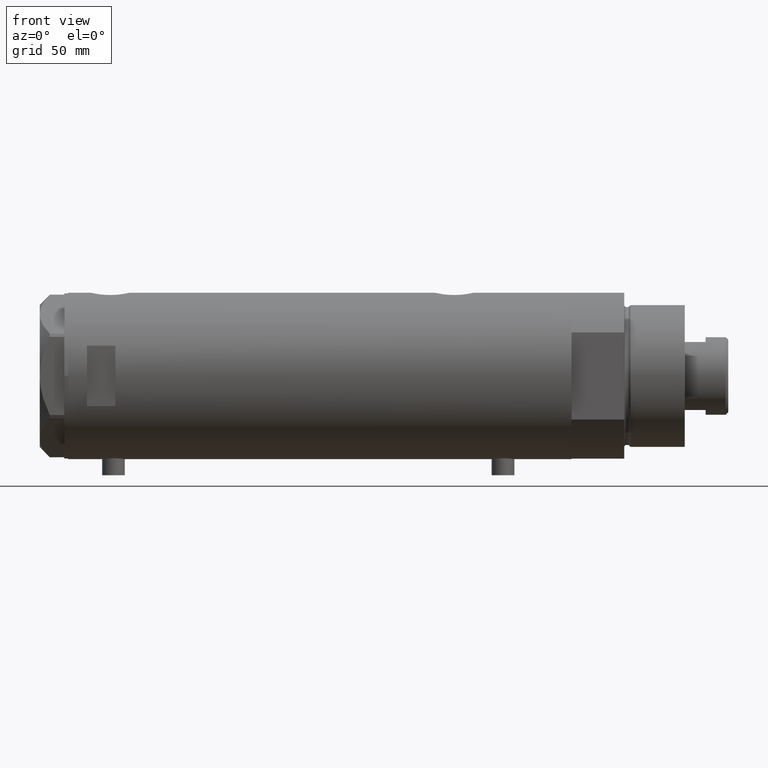
[diagram: clean part render]
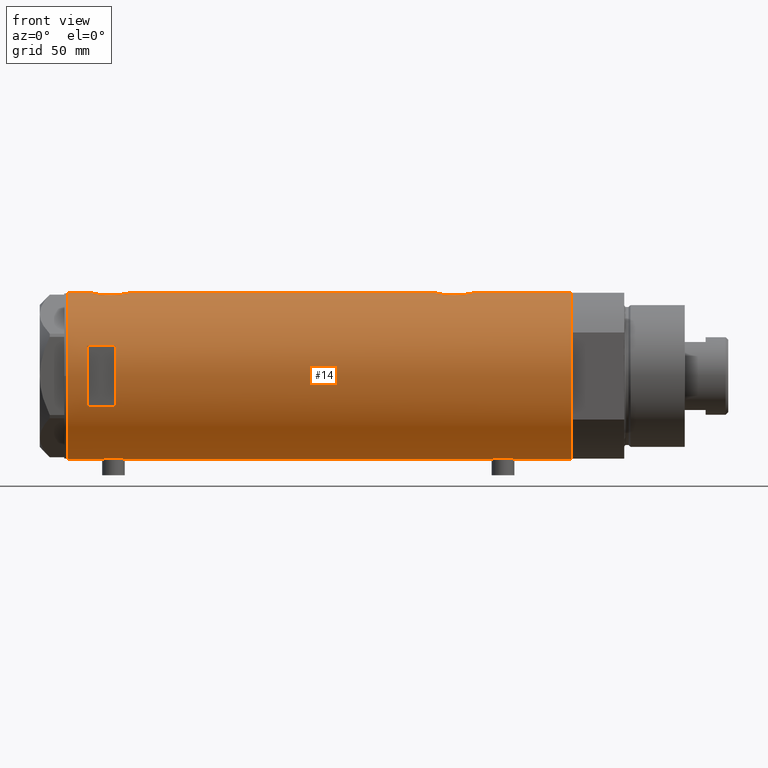
[diagram: same view with one face highlighted and labeled with its STEP entity id]
A machine part, front view. The second image highlights one B-rep face of the part: STEP entity #14.
In plain terms, the highlighted cylindrical surface (partial cylindrical patch) has radius 44 mm, axis along (-1, -0, 0).
Its self-contained STEP definition (entity closure, byte-faithful):
#1 = CARTESIAN_POINT ( 'NONE',  ( -43.91347832647110039, -2.763895659397271665, -102.5093864937758354 ) ) ;
#4 = CIRCLE ( 'NONE', #2629, 44.00000000000000000 ) ;
#14 = ADVANCED_FACE ( 'NONE', ( #3766, #4162 ), #1720, .T. ) ;
#32 = DIRECTION ( 'NONE',  ( -0.000000000000000000, -0.000000000000000000, -1.000000000000000000 ) ) ;
#52 = VERTEX_POINT ( 'NONE', #4429 ) ;
#82 = CARTESIAN_POINT ( 'NONE',  ( 43.13689707656755701, -8.680169016269172033, 105.8916309788879886 ) ) ;
#94 = CARTESIAN_POINT ( 'NONE',  ( 42.84850870634927134, -10.00026508230968325, -71.75583915121741541 ) ) ;
#100 = CARTESIAN_POINT ( 'NONE',  ( 43.61181667275830165, -5.838254419127787642, 102.7745589058250459 ) ) ;
#123 = CARTESIAN_POINT ( 'NONE',  ( 42.85249883256044967, -9.983208936152871971, 111.5657221654182081 ) ) ;
#126 = CARTESIAN_POINT ( 'NONE',  ( -43.66469451360045895, -5.426465874727613325, 112.3277459186421083 ) ) ;
#145 = CARTESIAN_POINT ( 'NONE',  ( 42.86369059155248351, -9.935849517229275563, 109.5936258998179937 ) ) ;
#155 = ORIENTED_EDGE ( 'NONE', *, *, #3172, .F. ) ;
#167 = CARTESIAN_POINT ( 'NONE',  ( 43.77905627191560001, -4.445085099228551329, 101.9185916568396664 ) ) ;
#179 = CARTESIAN_POINT ( 'NONE',  ( -43.83572624786197025, -3.813948911733268776, 104.2316356977933935 ) ) ;
#191 = CARTESIAN_POINT ( 'NONE',  ( 15.96871942267132027, -40.99999999999999289, 123.1999999999999744 ) ) ;
#206 = CARTESIAN_POINT ( 'NONE',  ( -15.96871942267132027, -40.99999999999999289, 108.1999999999999602 ) ) ;
#222 = CARTESIAN_POINT ( 'NONE',  ( 44.00000000000000000, 0.000000000000000000, -133.1999999999999886 ) ) ;
#224 = CARTESIAN_POINT ( 'NONE',  ( -43.91398925748691084, -2.775454910411443876, 114.8147077568105914 ) ) ;
#229 = ORIENTED_EDGE ( 'NONE', *, *, #4259, .F. ) ;
#233 = VERTEX_POINT ( 'NONE', #191 ) ;
#287 = CARTESIAN_POINT ( 'NONE',  ( -43.55380622335315621, -6.250277076879243943, -96.49110166609808914 ) ) ;
#305 = CARTESIAN_POINT ( 'NONE',  ( 43.94187300917955952, -2.283844398366611905, -80.84126046817048916 ) ) ;
#312 = CARTESIAN_POINT ( 'NONE',  ( -43.64013512596971367, -5.618144550806293047, -94.13115745626834041 ) ) ;
#313 = CARTESIAN_POINT ( 'NONE',  ( -44.00000000000000000, 4.742435893011557518E-16, 115.4500000000000028 ) ) ;
#335 = CARTESIAN_POINT ( 'NONE',  ( -43.97059312650996787, -1.620278982928820888, -102.9397869138586827 ) ) ;
#356 = CARTESIAN_POINT ( 'NONE',  ( -43.57636709704394917, -6.091127289750676077, -95.48500674339015859 ) ) ;
#374 = CARTESIAN_POINT ( 'NONE',  ( 44.00000000000000000, -3.135075661981687665E-15, -81.09999999999999432 ) ) ;
#379 = CARTESIAN_POINT ( 'NONE',  ( -43.66524845950890210, -5.422010366683132965, -100.0353804335297951 ) ) ;
#414 = EDGE_CURVE ( 'NONE', #52, #2241, #2964, .T. ) ;
#416 = LINE ( 'NONE', #4290, #875 ) ;
#420 = CARTESIAN_POINT ( 'NONE',  ( 42.89002978762407992, -9.821289861518533115, -69.13508362278911079 ) ) ;
#424 = CARTESIAN_POINT ( 'NONE',  ( 43.07447880731470491, -8.980869115410039072, 115.3470997020410209 ) ) ;
#427 = CARTESIAN_POINT ( 'NONE',  ( -44.00000000000000000, 4.742435893011557518E-16, 115.4500000000000028 ) ) ;
#448 = CARTESIAN_POINT ( 'NONE',  ( 43.92776409818818451, -2.602555515054472135, 120.5780334928707589 ) ) ;
#488 = LINE ( 'NONE', #3285, #1458 ) ;
#493 = CARTESIAN_POINT ( 'NONE',  ( 42.86761451923558042, -9.918101748202658996, 112.2186752354962636 ) ) ;
#496 = CARTESIAN_POINT ( 'NONE',  ( -43.97029046111977379, -1.628482392291957126, 115.2375861979205922 ) ) ;
#517 = CARTESIAN_POINT ( 'NONE',  ( 43.57790701154752355, -6.104591320335877036, 118.8474130089493173 ) ) ;
#521 = CARTESIAN_POINT ( 'NONE',  ( -43.58327167020068060, -6.041691433183235205, 110.8132755078336373 ) ) ;
#531 = CARTESIAN_POINT ( 'NONE',  ( -43.97059312650996787, -1.620278982928820888, 103.1602130861412689 ) ) ;
#542 = VERTEX_POINT ( 'NONE', #206 ) ;
#573 = CIRCLE ( 'NONE', #2547, 44.00000000000000000 ) ;
#627 = VERTEX_POINT ( 'NONE', #3212 ) ;
#649 = EDGE_CURVE ( 'NONE', #3897, #627, #1574, .T. ) ;
#656 = CARTESIAN_POINT ( 'NONE',  ( -43.71863308610073773, -4.973248429199020215, -93.09262209878828287 ) ) ;
#675 = CARTESIAN_POINT ( 'NONE',  ( -43.97755541524606571, -1.419649999726221967, -102.9901114392363297 ) ) ;
#683 = ORIENTED_EDGE ( 'NONE', *, *, #414, .T. ) ;
#686 = CARTESIAN_POINT ( 'NONE',  ( 43.24192112218942441, -8.134529092006102857, -76.92552229864108426 ) ) ;
#710 = CARTESIAN_POINT ( 'NONE',  ( 43.61181667275830875, -5.838254419127786754, -79.22544109417493985 ) ) ;
#716 = CARTESIAN_POINT ( 'NONE',  ( -44.00000000000000000, 5.388445781982983516E-15, -103.1499999999999915 ) ) ;
#741 = CARTESIAN_POINT ( 'NONE',  ( -43.57664920749031978, -6.089110472216501257, -98.32363086869413848 ) ) ;
#750 = VERTEX_POINT ( 'NONE', #427 ) ;
#766 = CARTESIAN_POINT ( 'NONE',  ( 44.00000000000000000, -0.6537011444665535853, 120.8999999999999631 ) ) ;
#803 = CARTESIAN_POINT ( 'NONE',  ( -43.55388615229803406, -6.249720082677240107, 108.7826748588801706 ) ) ;
#807 = CARTESIAN_POINT ( 'NONE',  ( 43.80655905412562134, -4.132395729537633677, -61.98794673806234812 ) ) ;
#814 = CARTESIAN_POINT ( 'NONE',  ( 42.84850870634926423, -10.00026508230968325, 110.2441608487825988 ) ) ;
#817 = CARTESIAN_POINT ( 'NONE',  ( -44.00000000000000000, 4.742435893011557518E-16, -90.64999999999997726 ) ) ;
#826 = CARTESIAN_POINT ( 'NONE',  ( 43.27890888111421930, -7.936045294464958211, -65.00681563342804736 ) ) ;
#835 = CARTESIAN_POINT ( 'NONE',  ( 43.35323102813806173, -7.519449998269472246, 117.5004228928426357 ) ) ;
#848 = ORIENTED_EDGE ( 'NONE', *, *, #2138, .F. ) ;
#849 = VERTEX_POINT ( 'NONE', #1483 ) ;
#851 = CARTESIAN_POINT ( 'NONE',  ( -43.87623998657198143, -3.302247739865014964, 103.8896565648025643 ) ) ;
#863 = CARTESIAN_POINT ( 'NONE',  ( 43.35257225115238100, -7.523216248090028202, 104.3039469640765304 ) ) ;
#872 = DIRECTION ( 'NONE',  ( 0.000000000000000000, 0.000000000000000000, 1.000000000000000000 ) ) ;
#875 = VECTOR ( 'NONE', #2902, 1000.000000000000000 ) ;
#938 = CARTESIAN_POINT ( 'NONE',  ( -43.64013512596971367, -5.618144550806293047, 111.9688425437316681 ) ) ;
#966 = DIRECTION ( 'NONE',  ( 1.000000000000000000, 0.000000000000000000, 0.000000000000000000 ) ) ;
#988 = CARTESIAN_POINT ( 'NONE',  ( 0.000000000000000000, 0.000000000000000000, -133.1999999999999886 ) ) ;
#1000 = CARTESIAN_POINT ( 'NONE',  ( -44.00000000000000711, -0.4134142287044808017, -90.64999999999999147 ) ) ;
#1021 = CARTESIAN_POINT ( 'NONE',  ( 43.71626298452613213, -5.019105827807320175, -79.77413437979596722 ) ) ;
#1028 = CARTESIAN_POINT ( 'NONE',  ( -43.55964145621772587, -6.209995197331129368, -96.08476386616428044 ) ) ;
#1044 = CARTESIAN_POINT ( 'NONE',  ( 43.39001814939470592, -7.304817421876464323, -77.93703460671675032 ) ) ;
#1049 = CARTESIAN_POINT ( 'NONE',  ( -43.66469451360045895, -5.426465874727613325, -93.77225408135787177 ) ) ;
#1059 = CARTESIAN_POINT ( 'NONE',  ( 43.50208939911752992, -6.605519787823896927, -78.61487246254434069 ) ) ;
#1072 = VECTOR ( 'NONE', #4386, 1000.000000000000000 ) ;
#1087 = CARTESIAN_POINT ( 'NONE',  ( -43.93596008603760339, -2.395372424984027582, -102.6834918053061187 ) ) ;
#1108 = CARTESIAN_POINT ( 'NONE',  ( 43.07447880731469780, -8.980869115410030190, -66.65290029795895066 ) ) ;
#1127 = CARTESIAN_POINT ( 'NONE',  ( 43.39114022679083860, -7.298186114522532186, -64.25582720507939882 ) ) ;
#1148 = CARTESIAN_POINT ( 'NONE',  ( -43.55981666146650610, -6.208773019004409477, 108.3756200080638195 ) ) ;
#1186 = CARTESIAN_POINT ( 'NONE',  ( 43.39114022679083860, -7.298186114522533074, 117.7441727949206154 ) ) ;
#1192 = VERTEX_POINT ( 'NONE', #3202 ) ;
#1208 = CARTESIAN_POINT ( 'NONE',  ( 42.92612181419236350, -9.662173761604313071, 113.4979978960971465 ) ) ;
#1230 = CARTESIAN_POINT ( 'NONE',  ( 43.98503203903423753, -1.316644100880406176, 100.9652704470436788 ) ) ;
#1276 = DIRECTION ( 'NONE',  ( 0.000000000000000000, 0.000000000000000000, 1.000000000000000000 ) ) ;
#1286 = DIRECTION ( 'NONE',  ( 0.000000000000000000, 0.000000000000000000, 1.000000000000000000 ) ) ;
#1347 = CARTESIAN_POINT ( 'NONE',  ( -43.99417593155912698, -0.8219945290704717689, -90.69061897587037890 ) ) ;
#1392 = CARTESIAN_POINT ( 'NONE',  ( -43.58327167020068060, -6.041691433183235205, -95.28672449216631435 ) ) ;
#1406 = CARTESIAN_POINT ( 'NONE',  ( 43.35257225115238811, -7.523216248090029090, -77.69605303592344114 ) ) ;
#1412 = CARTESIAN_POINT ( 'NONE',  ( -43.71916086763248899, -4.968610719017467758, -100.7133599885462445 ) ) ;
#1426 = CARTESIAN_POINT ( 'NONE',  ( 0.000000000000000000, 0.000000000000000000, 108.1999999999999602 ) ) ;
#1430 = B_SPLINE_CURVE_WITH_KNOTS ( 'NONE', 3,
 ( #716, #2473, #4194, #675, #335, #2838, #1087, #1, #3821, #2079, #3547, #2803, #2495, #1412, #379, #2823, #4172, #4235, #3906, #741, #3450, #1727, #287, #1028, #356, #1392, #3160, #2063, #312, #1049, #656, #1690, #4221, #3474, #1712, #3121, #4515, #4536, #2459, #3861, #1347, #1000, #2438 ),
 .UNSPECIFIED., .F., .F.,
 ( 4, 2, 2, 1, 2, 2, 2, 2, 2, 2, 2, 2, 2, 2, 2, 2, 2, 2, 2, 2, 2, 4 ),
 ( 0.01956509074799517994, 0.02078761141254040559, 0.02139887174481301668, 0.02201013207708563124, 0.02262139240935824580, 0.02323265274163085689, 0.02445517340617610336, 0.02567769407072134982, 0.02690021473526659629, 0.02751147506753922126, 0.02812273539981184622, 0.02934525606435713085, 0.03056777672890241548, 0.03117903706117506127, 0.03179029739344770011, 0.03301281805799302638, 0.03423533872253835264, 0.03545785938708367196, 0.03668038005162899129, 0.03729164038390166136, 0.03790290071617432449, 0.03912542138071965075 ),
 .UNSPECIFIED. ) ;
#1447 = VERTEX_POINT ( 'NONE', #3764 ) ;
#1451 = CARTESIAN_POINT ( 'NONE',  ( 43.24269204559828950, -8.130405600641541497, -65.26885497193005392 ) ) ;
#1458 = VECTOR ( 'NONE', #1515, 1000.000000000000000 ) ;
#1468 = CARTESIAN_POINT ( 'NONE',  ( 44.00000000000000000, -3.917155089190972685E-21, -61.10000000000000142 ) ) ;
#1472 = CARTESIAN_POINT ( 'NONE',  ( 43.46477581456304051, -6.845969322274853219, 103.6035553987669005 ) ) ;
#1483 = CARTESIAN_POINT ( 'NONE',  ( 44.00000000000000000, 0.000000000000000000, 133.1999999999999886 ) ) ;
#1490 = CARTESIAN_POINT ( 'NONE',  ( 42.99316244204496940, -9.359736474891654723, 114.4360302003217669 ) ) ;
#1515 = DIRECTION ( 'NONE',  ( 0.000000000000000000, 0.000000000000000000, 1.000000000000000000 ) ) ;
#1533 = CARTESIAN_POINT ( 'NONE',  ( -43.58358352828439308, -6.039443007521657414, 107.5783690161426165 ) ) ;
#1543 = CARTESIAN_POINT ( 'NONE',  ( 43.07321175413309078, -8.986876637256992595, 106.4657179801124727 ) ) ;
#1553 = CARTESIAN_POINT ( 'NONE',  ( -44.00000000000001421, -0.4080709675389184166, 102.9499999999999886 ) ) ;
#1566 = CARTESIAN_POINT ( 'NONE',  ( 43.85817087158037708, -3.542878095418179107, 101.5429633888447825 ) ) ;
#1567 = VERTEX_POINT ( 'NONE', #3567 ) ;
#1574 = CIRCLE ( 'NONE', #4244, 44.00000000000000000 ) ;
#1585 = CARTESIAN_POINT ( 'NONE',  ( 44.00000000000000000, 0.000000000000000000, -133.1999999999999886 ) ) ;
#1601 = B_SPLINE_CURVE_WITH_KNOTS ( 'NONE', 3,
 ( #3993, #1553, #2931, #2295, #531, #1879, #4016, #2980, #4339, #851, #179, #3010, #4043, #3941, #3644, #3602, #4312, #2959, #1533, #3675, #1148, #803, #2216, #2281, #3692, #521, #1917, #4061, #938, #126, #2588, #2666, #3660, #4084, #1970, #224, #3052, #2688, #496, #1895, #2171, #2739, #313 ),
 .UNSPECIFIED., .F., .F.,
 ( 4, 2, 2, 1, 2, 2, 2, 2, 2, 2, 2, 2, 2, 2, 2, 2, 2, 2, 2, 2, 2, 4 ),
 ( 0.01956509074799517994, 0.02078761141254040559, 0.02139887174481301668, 0.02201013207708563124, 0.02262139240935824580, 0.02323265274163085689, 0.02445517340617610336, 0.02567769407072134982, 0.02690021473526659629, 0.02751147506753922126, 0.02812273539981184622, 0.02934525606435713085, 0.03056777672890241548, 0.03117903706117506127, 0.03179029739344770011, 0.03301281805799302638, 0.03423533872253835264, 0.03545785938708367196, 0.03668038005162899129, 0.03729164038390166136, 0.03790290071617432449, 0.03912542138071965075 ),
 .UNSPECIFIED. ) ;
#1690 = CARTESIAN_POINT ( 'NONE',  ( -43.74813644611199948, -4.709999724143497879, -92.77155956056769526 ) ) ;
#1712 = CARTESIAN_POINT ( 'NONE',  ( -43.88932649443422918, -3.137583818903199262, -91.47900961940453612 ) ) ;
#1720 = CYLINDRICAL_SURFACE ( 'NONE', #1954, 44.00000000000000000 ) ;
#1727 = CARTESIAN_POINT ( 'NONE',  ( -43.55388615229803406, -6.249720082677240107, -97.31732514111982368 ) ) ;
#1744 = VECTOR ( 'NONE', #1286, 1000.000000000000000 ) ;
#1788 = CARTESIAN_POINT ( 'NONE',  ( 43.92776409818818451, -2.602555515054471691, -61.42196650712917005 ) ) ;
#1805 = LINE ( 'NONE', #2121, #3451 ) ;
#1815 = CARTESIAN_POINT ( 'NONE',  ( 42.86761451923557331, -9.918101748202655443, -69.78132476450373645 ) ) ;
#1825 = CARTESIAN_POINT ( 'NONE',  ( 44.00000000000000000, -2.552687571866728611E-15, 100.8999999999999915 ) ) ;
#1847 = CARTESIAN_POINT ( 'NONE',  ( 43.77763691689010273, -4.427538730370040199, 119.8724271220806941 ) ) ;
#1848 = VERTEX_POINT ( 'NONE', #4517 ) ;
#1864 = CARTESIAN_POINT ( 'NONE',  ( 43.88549648731375896, -3.229309612650779204, 120.3866430248638295 ) ) ;
#1879 = CARTESIAN_POINT ( 'NONE',  ( -43.95442538259509746, -2.011679190499023662, 103.2790645349021474 ) ) ;
#1882 = CARTESIAN_POINT ( 'NONE',  ( 43.98543813568861793, -1.304985013906734714, -61.16346933726119772 ) ) ;
#1895 = CARTESIAN_POINT ( 'NONE',  ( -43.97729452866927602, -1.427712738744854715, 115.2882290744342129 ) ) ;
#1914 = CARTESIAN_POINT ( 'NONE',  ( 43.71626298452613923, -5.019105827807321951, 102.2258656202040186 ) ) ;
#1917 = CARTESIAN_POINT ( 'NONE',  ( -43.59959777593760322, -5.922725608094071781, 111.2064931121741154 ) ) ;
#1928 = EDGE_CURVE ( 'NONE', #52, #1848, #3490, .T. ) ;
#1954 = AXIS2_PLACEMENT_3D ( 'NONE', #988, #4110, #966 ) ;
#1970 = CARTESIAN_POINT ( 'NONE',  ( -43.88932649443422918, -3.137583818903199262, 114.6209903805954013 ) ) ;
#2001 = ORIENTED_EDGE ( 'NONE', *, *, #2672, .F. ) ;
#2040 = DIRECTION ( 'NONE',  ( 0.000000000000000000, 0.000000000000000000, 1.000000000000000000 ) ) ;
#2055 = CARTESIAN_POINT ( 'NONE',  ( 43.92391465552170615, -2.605621203777310768, -80.76018015101782055 ) ) ;
#2063 = CARTESIAN_POINT ( 'NONE',  ( -43.60904414879379942, -5.852991024272603759, -94.69843683347090746 ) ) ;
#2073 = CARTESIAN_POINT ( 'NONE',  ( 44.00000000000000000, -2.552687571866728611E-15, 100.8999999999999915 ) ) ;
#2079 = CARTESIAN_POINT ( 'NONE',  ( -43.87623998657198143, -3.302247739865014964, -102.2103434351974158 ) ) ;
#2090 = CARTESIAN_POINT ( 'NONE',  ( -44.00000000000000000, 5.388445781982983516E-15, -103.1499999999999915 ) ) ;
#2120 = CARTESIAN_POINT ( 'NONE',  ( 44.00000000000000711, -0.6628808997490029942, -81.10000000000000853 ) ) ;
#2121 = CARTESIAN_POINT ( 'NONE',  ( -15.96871942267132027, -40.99999999999999289, -133.1999999999999886 ) ) ;
#2126 = DIRECTION ( 'NONE',  ( 0.000000000000000000, 0.000000000000000000, 1.000000000000000000 ) ) ;
#2138 = EDGE_CURVE ( 'NONE', #233, #1567, #573, .T. ) ;
#2168 = CARTESIAN_POINT ( 'NONE',  ( 43.88549648731376607, -3.229309612650775652, -61.61335697513614917 ) ) ;
#2171 = CARTESIAN_POINT ( 'NONE',  ( -43.99417593155912698, -0.8219945290704717689, 115.4093810241296012 ) ) ;
#2176 = CARTESIAN_POINT ( 'NONE',  ( 43.99999999999998579, -0.6628808997490068800, 100.8999999999999631 ) ) ;
#2193 = CARTESIAN_POINT ( 'NONE',  ( 42.85249883256043546, -9.983208936152871971, -70.43427783458177771 ) ) ;
#2216 = CARTESIAN_POINT ( 'NONE',  ( -43.55380622335315621, -6.250277076879243943, 109.6088983339019052 ) ) ;
#2218 = CARTESIAN_POINT ( 'NONE',  ( 43.77763691689010983, -4.427538730370037534, -62.12757287791929173 ) ) ;
#2241 = VERTEX_POINT ( 'NONE', #2073 ) ;
#2247 = CARTESIAN_POINT ( 'NONE',  ( 43.13833976206234411, -8.672905216733555633, 115.9203292102081519 ) ) ;
#2248 = ORIENTED_EDGE ( 'NONE', *, *, #3118, .F. ) ;
#2276 = CARTESIAN_POINT ( 'NONE',  ( 43.39001814939472013, -7.304817421876465211, 104.0629653932832781 ) ) ;
#2281 = CARTESIAN_POINT ( 'NONE',  ( -43.55964145621772587, -6.209995197331129368, 110.0152361338357139 ) ) ;
#2295 = CARTESIAN_POINT ( 'NONE',  ( -43.97755541524606571, -1.419649999726221967, 103.1098885607636220 ) ) ;
#2300 = VERTEX_POINT ( 'NONE', #2090 ) ;
#2310 = VERTEX_POINT ( 'NONE', #817 ) ;
#2319 = LINE ( 'NONE', #1585, #2434 ) ;
#2330 = DIRECTION ( 'NONE',  ( 1.000000000000000000, 0.000000000000000000, 0.000000000000000000 ) ) ;
#2392 = LINE ( 'NONE', #222, #2709 ) ;
#2432 = CARTESIAN_POINT ( 'NONE',  ( 43.77905627191558580, -4.445085099228550440, -80.08140834316033363 ) ) ;
#2434 = VECTOR ( 'NONE', #2657, 1000.000000000000000 ) ;
#2438 = CARTESIAN_POINT ( 'NONE',  ( -44.00000000000000000, 4.742435893011557518E-16, -90.64999999999997726 ) ) ;
#2457 = ORIENTED_EDGE ( 'NONE', *, *, #1928, .F. ) ;
#2459 = CARTESIAN_POINT ( 'NONE',  ( -43.97029046111977379, -1.628482392291957126, -90.86241380207947316 ) ) ;
#2473 = CARTESIAN_POINT ( 'NONE',  ( -44.00000000000001421, -0.4080709675389184166, -103.1500000000000199 ) ) ;
#2495 = CARTESIAN_POINT ( 'NONE',  ( -43.74870614644074607, -4.704745394280565485, -101.0344648734002391 ) ) ;
#2539 = CARTESIAN_POINT ( 'NONE',  ( 43.50370990764397305, -6.606474645717129945, 118.4352093528488723 ) ) ;
#2547 = AXIS2_PLACEMENT_3D ( 'NONE', #3744, #2694, #2330 ) ;
#2573 = LINE ( 'NONE', #4037, #3016 ) ;
#2588 = CARTESIAN_POINT ( 'NONE',  ( -43.71863308610073773, -4.973248429199020215, 113.0073779012116830 ) ) ;
#2605 = EDGE_CURVE ( 'NONE', #1567, #542, #1805, .T. ) ;
#2606 = CARTESIAN_POINT ( 'NONE',  ( 43.68175117880464597, -5.289576318274436417, 119.3927754329155562 ) ) ;
#2629 = AXIS2_PLACEMENT_3D ( 'NONE', #3045, #1276, #2682 ) ;
#2645 = ORIENTED_EDGE ( 'NONE', *, *, #649, .T. ) ;
#2657 = DIRECTION ( 'NONE',  ( 0.000000000000000000, 0.000000000000000000, 1.000000000000000000 ) ) ;
#2666 = CARTESIAN_POINT ( 'NONE',  ( -43.74813644611199948, -4.709999724143497879, 113.3284404394322280 ) ) ;
#2672 = EDGE_CURVE ( 'NONE', #2310, #3141, #3399, .T. ) ;
#2676 = EDGE_CURVE ( 'NONE', #3141, #750, #1601, .T. ) ;
#2682 = DIRECTION ( 'NONE',  ( 1.000000000000000000, 0.000000000000000000, 0.000000000000000000 ) ) ;
#2688 = CARTESIAN_POINT ( 'NONE',  ( -43.95404166778755695, -2.020054257598466574, 115.1180894548565163 ) ) ;
#2694 = DIRECTION ( 'NONE',  ( -0.000000000000000000, 0.000000000000000000, -1.000000000000000000 ) ) ;
#2709 = VECTOR ( 'NONE', #2040, 1000.000000000000000 ) ;
#2716 = VERTEX_POINT ( 'NONE', #2731 ) ;
#2731 = CARTESIAN_POINT ( 'NONE',  ( 15.96871942267132027, -40.99999999999999289, 108.1999999999999602 ) ) ;
#2735 = ORIENTED_EDGE ( 'NONE', *, *, #2676, .F. ) ;
#2739 = CARTESIAN_POINT ( 'NONE',  ( -44.00000000000000711, -0.4134142287044808017, 115.4500000000000313 ) ) ;
#2758 = DIRECTION ( 'NONE',  ( -1.000000000000000000, 0.000000000000000000, 0.000000000000000000 ) ) ;
#2796 = CARTESIAN_POINT ( 'NONE',  ( 42.86369059155249062, -9.935849517229277339, -72.40637410018199205 ) ) ;
#2803 = CARTESIAN_POINT ( 'NONE',  ( -43.80686114384900520, -4.128296917151112133, -101.6101585512830923 ) ) ;
#2815 = CARTESIAN_POINT ( 'NONE',  ( 43.46477581456303341, -6.845969322274854107, -78.39644460123312797 ) ) ;
#2823 = CARTESIAN_POINT ( 'NONE',  ( -43.64064219598290606, -5.614224114468902904, -99.67685489619469763 ) ) ;
#2831 = DIRECTION ( 'NONE',  ( 0.000000000000000000, 0.000000000000000000, 1.000000000000000000 ) ) ;
#2838 = CARTESIAN_POINT ( 'NONE',  ( -43.95442538259509746, -2.011679190499023662, -102.8209354650977758 ) ) ;
#2866 = CARTESIAN_POINT ( 'NONE',  ( 43.13833976206233700, -8.672905216733548528, -66.07967078979183384 ) ) ;
#2882 = CARTESIAN_POINT ( 'NONE',  ( 43.71528002050702355, -5.005885132985642194, -62.43693693285512580 ) ) ;
#2884 = CARTESIAN_POINT ( 'NONE',  ( -44.00000000000000000, 5.388445781982983516E-15, 102.9499999999999886 ) ) ;
#2885 = CARTESIAN_POINT ( 'NONE',  ( -44.00000000000000000, 5.388445916248353619E-15, -133.1999999999999886 ) ) ;
#2889 = CARTESIAN_POINT ( 'NONE',  ( 42.84860178791322483, -9.999866241079296003, 111.2339638269416184 ) ) ;
#2902 = DIRECTION ( 'NONE',  ( 0.000000000000000000, 0.000000000000000000, 1.000000000000000000 ) ) ;
#2915 = CARTESIAN_POINT ( 'NONE',  ( 42.96858625215907779, -9.471543237354833167, 114.1244477931078194 ) ) ;
#2923 = EDGE_CURVE ( 'NONE', #1447, #849, #2392, .T. ) ;
#2931 = CARTESIAN_POINT ( 'NONE',  ( -43.99432382855034973, -0.8140126287075730716, 102.9895783318308560 ) ) ;
#2944 = CARTESIAN_POINT ( 'NONE',  ( 43.71528002050701645, -5.005885132985640418, 119.5630630671448529 ) ) ;
#2945 = ORIENTED_EDGE ( 'NONE', *, *, #4121, .T. ) ;
#2959 = CARTESIAN_POINT ( 'NONE',  ( -43.59994860325051036, -5.920144153815573240, 107.1859364243023975 ) ) ;
#2964 = LINE ( 'NONE', #4367, #1072 ) ;
#2971 = CARTESIAN_POINT ( 'NONE',  ( 43.24192112218943151, -8.134529092006102857, 105.0744777013589157 ) ) ;
#2980 = CARTESIAN_POINT ( 'NONE',  ( -43.91347832647110039, -2.763895659397271665, 103.5906135062241447 ) ) ;
#2991 = CARTESIAN_POINT ( 'NONE',  ( 43.88203303552251100, -3.235230624304767932, 101.4320738693601527 ) ) ;
#2992 = EDGE_LOOP ( 'NONE', ( #229, #3617, #848, #3554 ) ) ;
#3010 = CARTESIAN_POINT ( 'NONE',  ( -43.80686114384900520, -4.128296917151112133, 104.4898414487168878 ) ) ;
#3016 = VECTOR ( 'NONE', #872, 1000.000000000000000 ) ;
#3045 = CARTESIAN_POINT ( 'NONE',  ( 0.000000000000000000, 0.000000000000000000, 133.1999999999999886 ) ) ;
#3052 = CARTESIAN_POINT ( 'NONE',  ( -43.94477385411916970, -2.211843467998029666, 115.0490722992286408 ) ) ;
#3060 = CARTESIAN_POINT ( 'NONE',  ( -44.00000000000000000, 5.388445916248353619E-15, -133.1999999999999886 ) ) ;
#3103 = ORIENTED_EDGE ( 'NONE', *, *, #2923, .T. ) ;
#3118 = EDGE_CURVE ( 'NONE', #1192, #849, #4, .T. ) ;
#3121 = CARTESIAN_POINT ( 'NONE',  ( -43.91398925748691084, -2.775454910411443876, -91.28529224318931767 ) ) ;
#3137 = CARTESIAN_POINT ( 'NONE',  ( 43.98503203903423753, -1.316644100880407953, -81.03472955295632119 ) ) ;
#3141 = VERTEX_POINT ( 'NONE', #2884 ) ;
#3160 = CARTESIAN_POINT ( 'NONE',  ( -43.59959777593760322, -5.922725608094071781, -94.89350688782582210 ) ) ;
#3172 = EDGE_CURVE ( 'NONE', #750, #1192, #2573, .T. ) ;
#3202 = CARTESIAN_POINT ( 'NONE',  ( -44.00000000000000000, 5.388445916248353619E-15, 133.1999999999999886 ) ) ;
#3212 = CARTESIAN_POINT ( 'NONE',  ( 44.00000000000000000, 0.000000000000000000, -133.1999999999999886 ) ) ;
#3225 = CARTESIAN_POINT ( 'NONE',  ( 43.50370990764398726, -6.606474645717129945, -63.56479064715113481 ) ) ;
#3272 = CARTESIAN_POINT ( 'NONE',  ( 43.27890888111421930, -7.936045294464972422, 116.9931843665719668 ) ) ;
#3285 = CARTESIAN_POINT ( 'NONE',  ( 15.96871942267132027, -40.99999999999999289, -133.1999999999999886 ) ) ;
#3290 = CARTESIAN_POINT ( 'NONE',  ( 42.96573602780768653, -9.487415353952515673, 107.6726545541637989 ) ) ;
#3306 = CARTESIAN_POINT ( 'NONE',  ( 43.68175117880464597, -5.289576318274436417, -62.60722456708439410 ) ) ;
#3316 = CARTESIAN_POINT ( 'NONE',  ( 44.00000000000000000, -3.917104602093038540E-21, 120.8999999999999773 ) ) ;
#3324 = ORIENTED_EDGE ( 'NONE', *, *, #3493, .F. ) ;
#3339 = CARTESIAN_POINT ( 'NONE',  ( 42.92195198079053142, -9.681069926205539744, 108.3106749909348281 ) ) ;
#3399 = LINE ( 'NONE', #3060, #1744 ) ;
#3450 = CARTESIAN_POINT ( 'NONE',  ( -43.55981666146650610, -6.208773019004409477, -97.72437999193616065 ) ) ;
#3451 = VECTOR ( 'NONE', #32, 1000.000000000000000 ) ;
#3470 = CARTESIAN_POINT ( 'NONE',  ( 43.88203303552251100, -3.235230624304770153, -80.56792613063983310 ) ) ;
#3474 = CARTESIAN_POINT ( 'NONE',  ( -43.83513771791772484, -3.820747781112549202, -91.93678981703624231 ) ) ;
#3485 = CARTESIAN_POINT ( 'NONE',  ( 43.85817087158039129, -3.542878095418179996, -80.45703661115524596 ) ) ;
#3490 = B_SPLINE_CURVE_WITH_KNOTS ( 'NONE', 3,
 ( #1468, #3974, #1882, #1788, #2168, #807, #2218, #2882, #3306, #3626, #3225, #1127, #3944, #826, #1451, #2866, #1108, #3925, #4292, #3581, #420, #1815, #2193, #3607, #94, #2796, #3511, #4215, #4508, #4188, #686, #4530, #1406, #1044, #2815, #1059, #3876, #710, #1021, #2432, #3485, #3470, #2055, #305, #3137, #2120, #374 ),
 .UNSPECIFIED., .F., .F.,
 ( 4, 2, 2, 2, 2, 2, 2, 2, 2, 2, 1, 2, 2, 2, 2, 2, 2, 2, 2, 2, 2, 2, 2, 4 ),
 ( 0.03136730421198213187, 0.03332724096696802751, 0.03528717772195392316, 0.03626714609944686751, 0.03724711447693981187, 0.03920705123192570751, 0.04018701960941865187, 0.04116698798691159622, 0.04312692474189751268, 0.04410689311939047785, 0.04508686149688344302, 0.04606682987437640819, 0.04704679825186937336, 0.04900673500685525513, 0.05096667176184113690, 0.05292660851682702561, 0.05390657689431999078, 0.05488654527181294207, 0.05586651364930590030, 0.05684648202679885853, 0.05880641878178477500, 0.05978638715927772629, 0.06076635553677067064, 0.06272629229175656629 ),
 .UNSPECIFIED. ) ;
#3493 = EDGE_CURVE ( 'NONE', #1447, #2241, #4410, .T. ) ;
#3511 = CARTESIAN_POINT ( 'NONE',  ( 42.92195198079052432, -9.681069926205537968, -73.68932500906512928 ) ) ;
#3543 = AXIS2_PLACEMENT_3D ( 'NONE', #1426, #2126, #2758 ) ;
#3547 = CARTESIAN_POINT ( 'NONE',  ( -43.83572624786197025, -3.813948911733268776, -101.8683643022066150 ) ) ;
#3554 = ORIENTED_EDGE ( 'NONE', *, *, #3998, .F. ) ;
#3567 = CARTESIAN_POINT ( 'NONE',  ( -15.96871942267132027, -40.99999999999999289, 123.1999999999999744 ) ) ;
#3581 = CARTESIAN_POINT ( 'NONE',  ( 42.92612181419237061, -9.662173761604313071, -68.50200210390286770 ) ) ;
#3599 = EDGE_LOOP ( 'NONE', ( #4186, #2645, #2945, #2457, #683, #3324, #3103, #2248, #155, #2735, #2001, #4046 ) ) ;
#3602 = CARTESIAN_POINT ( 'NONE',  ( -43.64064219598290606, -5.614224114468902904, 106.4231451038052683 ) ) ;
#3607 = CARTESIAN_POINT ( 'NONE',  ( 42.84860178791323193, -9.999866241079299556, -70.76603617305836735 ) ) ;
#3616 = CARTESIAN_POINT ( 'NONE',  ( 43.80655905412562134, -4.132395729537633677, 120.0120532619375950 ) ) ;
#3617 = ORIENTED_EDGE ( 'NONE', *, *, #2605, .F. ) ;
#3626 = CARTESIAN_POINT ( 'NONE',  ( 43.57790701154753776, -6.104591320335878812, -63.15258699105066853 ) ) ;
#3644 = CARTESIAN_POINT ( 'NONE',  ( -43.66524845950890210, -5.422010366683132965, 106.0646195664701850 ) ) ;
#3657 = CARTESIAN_POINT ( 'NONE',  ( 42.89003040145177437, -9.821289533110931558, 112.8649162832999195 ) ) ;
#3660 = CARTESIAN_POINT ( 'NONE',  ( -43.80623767923739109, -4.134861581628527460, 113.9043636726069053 ) ) ;
#3675 = CARTESIAN_POINT ( 'NONE',  ( -43.57664920749031978, -6.089110472216501257, 107.7763691313058985 ) ) ;
#3689 = CARTESIAN_POINT ( 'NONE',  ( 43.57553740812844723, -6.102230194686623754, 102.9710034401132788 ) ) ;
#3692 = CARTESIAN_POINT ( 'NONE',  ( -43.57636709704394917, -6.091127289750676077, 110.6149932566098784 ) ) ;
#3744 = CARTESIAN_POINT ( 'NONE',  ( 0.000000000000000000, 0.000000000000000000, 123.1999999999999744 ) ) ;
#3762 = CIRCLE ( 'NONE', #3543, 44.00000000000000000 ) ;
#3764 = CARTESIAN_POINT ( 'NONE',  ( 44.00000000000000000, -3.917104602093038540E-21, 120.8999999999999773 ) ) ;
#3766 = FACE_OUTER_BOUND ( 'NONE', #3599, .T. ) ;
#3821 = CARTESIAN_POINT ( 'NONE',  ( -43.88927795770375440, -3.124736516396337649, -102.3166740492380455 ) ) ;
#3854 = CARTESIAN_POINT ( 'NONE',  ( 0.000000000000000000, 0.000000000000000000, -133.1999999999999886 ) ) ;
#3861 = CARTESIAN_POINT ( 'NONE',  ( -43.97729452866927602, -1.427712738744854715, -90.81177092556575303 ) ) ;
#3876 = CARTESIAN_POINT ( 'NONE',  ( 43.57553740812846854, -6.102230194686627307, -79.02899655988669281 ) ) ;
#3897 = VERTEX_POINT ( 'NONE', #2885 ) ;
#3906 = CARTESIAN_POINT ( 'NONE',  ( -43.58358352828439308, -6.039443007521657414, -98.52163098385737783 ) ) ;
#3915 = DIRECTION ( 'NONE',  ( 1.000000000000000000, 0.000000000000000000, 0.000000000000000000 ) ) ;
#3925 = CARTESIAN_POINT ( 'NONE',  ( 42.99316244204496940, -9.359736474891654723, -67.56396979967824734 ) ) ;
#3941 = CARTESIAN_POINT ( 'NONE',  ( -43.71916086763248899, -4.968610719017467758, 105.3866400114537214 ) ) ;
#3944 = CARTESIAN_POINT ( 'NONE',  ( 43.35323102813806884, -7.519449998269458924, -64.49957710715733583 ) ) ;
#3974 = CARTESIAN_POINT ( 'NONE',  ( 44.00000000000001421, -0.6537011444665502546, -61.10000000000001563 ) ) ;
#3981 = CARTESIAN_POINT ( 'NONE',  ( 43.94187300917955241, -2.283844398366610129, 101.1587395318294966 ) ) ;
#3993 = CARTESIAN_POINT ( 'NONE',  ( -44.00000000000000000, 5.388445781982983516E-15, 102.9499999999999886 ) ) ;
#3998 = EDGE_CURVE ( 'NONE', #2716, #233, #488, .T. ) ;
#4016 = CARTESIAN_POINT ( 'NONE',  ( -43.93596008603760339, -2.395372424984027582, 103.4165081946938756 ) ) ;
#4028 = CARTESIAN_POINT ( 'NONE',  ( 43.24269204559828950, -8.130405600641543273, 116.7311450280699034 ) ) ;
#4037 = CARTESIAN_POINT ( 'NONE',  ( -44.00000000000000000, 5.388445916248353619E-15, -133.1999999999999886 ) ) ;
#4043 = CARTESIAN_POINT ( 'NONE',  ( -43.74870614644074607, -4.704745394280565485, 105.0655351265997552 ) ) ;
#4046 = ORIENTED_EDGE ( 'NONE', *, *, #4281, .F. ) ;
#4061 = CARTESIAN_POINT ( 'NONE',  ( -43.60904414879379942, -5.852991024272603759, 111.4015631665290584 ) ) ;
#4084 = CARTESIAN_POINT ( 'NONE',  ( -43.83513771791772484, -3.820747781112549202, 114.1632101829636952 ) ) ;
#4110 = DIRECTION ( 'NONE',  ( 0.000000000000000000, 0.000000000000000000, 1.000000000000000000 ) ) ;
#4121 = EDGE_CURVE ( 'NONE', #627, #1848, #2319, .T. ) ;
#4162 = FACE_BOUND ( 'NONE', #2992, .T. ) ;
#4172 = CARTESIAN_POINT ( 'NONE',  ( -43.60943079847655213, -5.850114217193378430, -99.10921875926605651 ) ) ;
#4186 = ORIENTED_EDGE ( 'NONE', *, *, #4305, .F. ) ;
#4188 = CARTESIAN_POINT ( 'NONE',  ( 43.13689707656755701, -8.680169016269172033, -76.10836902111202562 ) ) ;
#4194 = CARTESIAN_POINT ( 'NONE',  ( -43.99432382855034973, -0.8140126287075730716, -103.1104216681691383 ) ) ;
#4215 = CARTESIAN_POINT ( 'NONE',  ( 42.96573602780769363, -9.487415353952515673, -74.32734544583620107 ) ) ;
#4221 = CARTESIAN_POINT ( 'NONE',  ( -43.80623767923739109, -4.134861581628527460, -92.19563632739300374 ) ) ;
#4235 = CARTESIAN_POINT ( 'NONE',  ( -43.59994860325051036, -5.920144153815573240, -98.91406357569759678 ) ) ;
#4244 = AXIS2_PLACEMENT_3D ( 'NONE', #3854, #2831, #3915 ) ;
#4259 = EDGE_CURVE ( 'NONE', #542, #2716, #3762, .T. ) ;
#4281 = EDGE_CURVE ( 'NONE', #2300, #2310, #1430, .T. ) ;
#4290 = CARTESIAN_POINT ( 'NONE',  ( -44.00000000000000000, 5.388445916248353619E-15, -133.1999999999999886 ) ) ;
#4292 = CARTESIAN_POINT ( 'NONE',  ( 42.96858625215908489, -9.471543237354836720, -67.87555220689218061 ) ) ;
#4305 = EDGE_CURVE ( 'NONE', #3897, #2300, #416, .T. ) ;
#4312 = CARTESIAN_POINT ( 'NONE',  ( -43.60943079847655213, -5.850114217193378430, 106.9907812407339094 ) ) ;
#4322 = CARTESIAN_POINT ( 'NONE',  ( 43.50208939911752992, -6.605519787823896927, 103.3851275374556877 ) ) ;
#4339 = CARTESIAN_POINT ( 'NONE',  ( -43.88927795770375440, -3.124736516396337649, 103.7833259507618919 ) ) ;
#4350 = CARTESIAN_POINT ( 'NONE',  ( 43.98543813568861793, -1.304985013906736713, 120.8365306627387525 ) ) ;
#4367 = CARTESIAN_POINT ( 'NONE',  ( 44.00000000000000000, 0.000000000000000000, -133.1999999999999886 ) ) ;
#4374 = CARTESIAN_POINT ( 'NONE',  ( 43.27861175590267351, -7.937636171351968528, 104.8089713200900377 ) ) ;
#4386 = DIRECTION ( 'NONE',  ( 0.000000000000000000, 0.000000000000000000, 1.000000000000000000 ) ) ;
#4398 = CARTESIAN_POINT ( 'NONE',  ( 43.92391465552169194, -2.605621203777309436, 101.2398198489822221 ) ) ;
#4410 = B_SPLINE_CURVE_WITH_KNOTS ( 'NONE', 3,
 ( #3316, #766, #4350, #448, #1864, #3616, #1847, #2944, #2606, #517, #2539, #1186, #835, #3272, #4028, #2247, #424, #1490, #2915, #1208, #3657, #493, #123, #2889, #814, #145, #3339, #3290, #1543, #82, #2971, #4374, #863, #2276, #1472, #4322, #3689, #100, #1914, #167, #1566, #2991, #4398, #3981, #1230, #2176, #1825 ),
 .UNSPECIFIED., .F., .F.,
 ( 4, 2, 2, 2, 2, 2, 2, 2, 2, 2, 1, 2, 2, 2, 2, 2, 2, 2, 2, 2, 2, 2, 2, 4 ),
 ( 0.03136730421198213881, 0.03332724096696806915, 0.03528717772195399949, 0.03626714609944696466, 0.03724711447693992289, 0.03920705123192585323, 0.04018701960941880452, 0.04116698798691175581, 0.04312692474189768616, 0.04410689311939065826, 0.04508686149688362343, 0.04606682987437659554, 0.04704679825186956071, 0.04900673500685545636, 0.05096667176184135201, 0.05292660851682724765, 0.05390657689432017119, 0.05488654527181310167, 0.05586651364930603214, 0.05684648202679896262, 0.05880641878178481663, 0.05978638715927775404, 0.06076635553677069146, 0.06272629229175656629 ),
 .UNSPECIFIED. ) ;
#4429 = CARTESIAN_POINT ( 'NONE',  ( 44.00000000000000000, -3.917155089190972685E-21, -61.10000000000000142 ) ) ;
#4508 = CARTESIAN_POINT ( 'NONE',  ( 43.07321175413309788, -8.986876637256990819, -75.53428201988754154 ) ) ;
#4515 = CARTESIAN_POINT ( 'NONE',  ( -43.94477385411916970, -2.211843467998029666, -91.05092770077138198 ) ) ;
#4517 = CARTESIAN_POINT ( 'NONE',  ( 44.00000000000000000, -3.135075661981687665E-15, -81.09999999999999432 ) ) ;
#4530 = CARTESIAN_POINT ( 'NONE',  ( 43.27861175590268772, -7.937636171351970304, -77.19102867990997652 ) ) ;
#4536 = CARTESIAN_POINT ( 'NONE',  ( -43.95404166778755695, -2.020054257598466574, -90.98191054514344955 ) ) ;